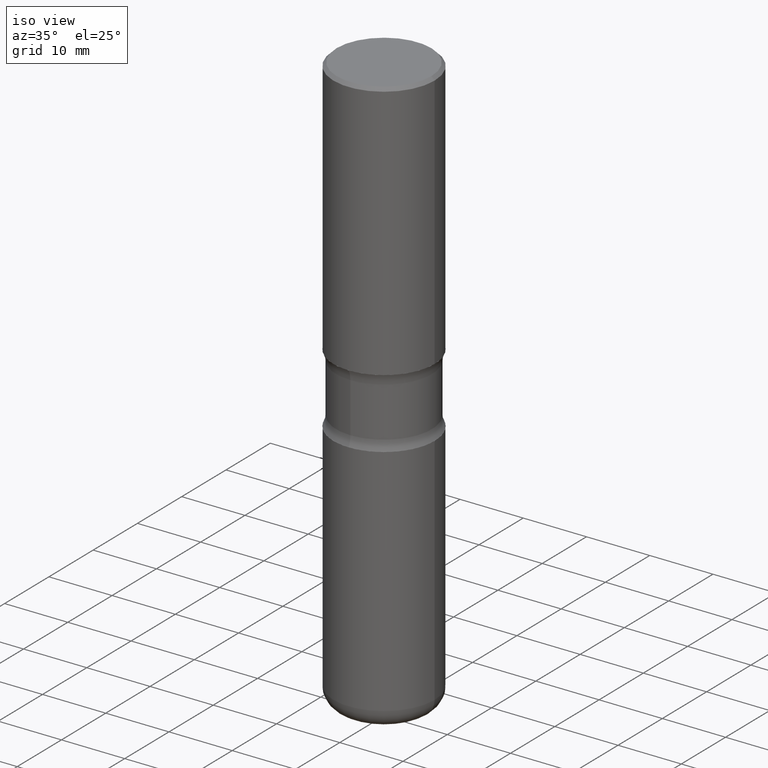
[diagram: clean part render]
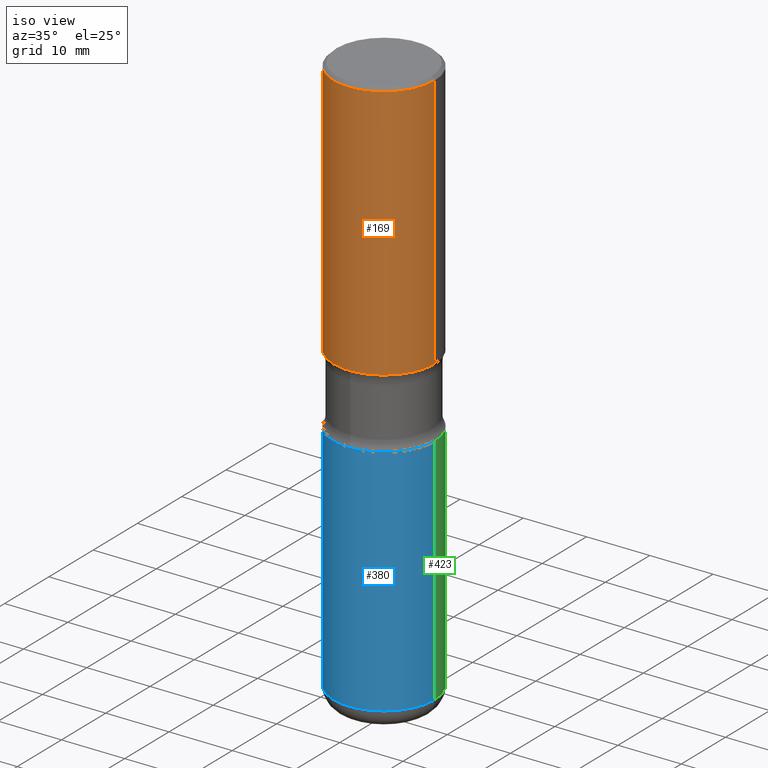
[diagram: same view with three faces highlighted in distinct colors, each labeled with its STEP entity id]
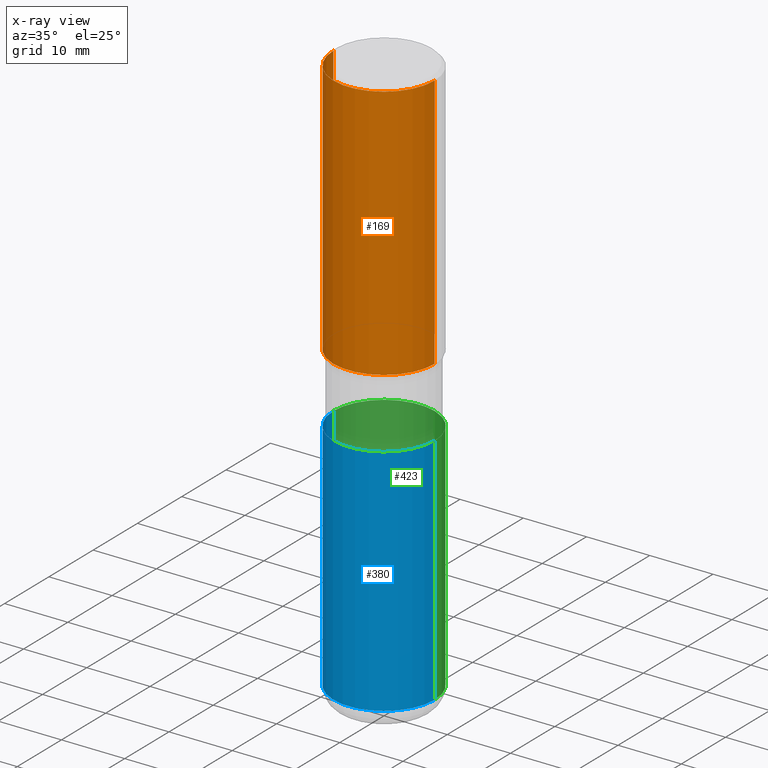
[diagram: x-ray of the same camera — body ghosted, the three highlighted faces saturated]
A machine part, iso view with three faces highlighted in distinct colors.
The next image is the same camera in x-ray (body ghosted, the three faces saturated) — at least one of them is partly hidden behind the body in this view.
Their STEP definitions:

[orange] entity #169 — the highlighted cylindrical surface (partial cylindrical patch) has radius 7.9997 mm, axis along (-0, 0, 1).
#22 = VERTEX_POINT ( 'NONE', #83 ) ;
#39 = DIRECTION ( 'NONE',  ( -2.445468806185136877E-29, 3.491481338843145188E-15, 1.000000000000000000 ) ) ;
#45 = CARTESIAN_POINT ( 'NONE',  ( 0.3149500000000002853, -2.199284095337291843E-15, 1.535751875536931531E-29 ) ) ;
#59 = CARTESIAN_POINT ( 'NONE',  ( -0.3149500000000001743, 2.129454468560427756E-15, -0.02000000000000006981 ) ) ;
#61 = ORIENTED_EDGE ( 'NONE', *, *, #146, .F. ) ;
#70 = DIRECTION ( 'NONE',  ( 1.000000000000000000, -6.982962677686265922E-15, 0.000000000000000000 ) ) ;
#83 = CARTESIAN_POINT ( 'NONE',  ( -0.3149500000000003408, -6.148604816253523528E-16, -1.614099999999999424 ) ) ;
#86 = CYLINDRICAL_SURFACE ( 'NONE', #484, 0.3149500000000002853 ) ;
#100 = ORIENTED_EDGE ( 'NONE', *, *, #383, .T. ) ;
#108 = EDGE_LOOP ( 'NONE', ( #61, #100, #461, #472 ) ) ;
#113 = CARTESIAN_POINT ( 'NONE',  ( 4.890937612370289799E-31, -6.982962677686315028E-17, -0.02000000000000006981 ) ) ;
#117 = CARTESIAN_POINT ( 'NONE',  ( 0.3149500000000001743, -2.230543471175008239E-15, -0.02000000000000006981 ) ) ;
#144 = CARTESIAN_POINT ( 'NONE',  ( 0.000000000000000000, 0.000000000000000000, 0.000000000000000000 ) ) ;
#146 = EDGE_CURVE ( 'NONE', #22, #268, #327, .T. ) ;
#154 = DIRECTION ( 'NONE',  ( -2.445468806185136597E-29, 3.491481338843145583E-15, 1.000000000000000000 ) ) ;
#156 = VERTEX_POINT ( 'NONE', #289 ) ;
#159 = DIRECTION ( 'NONE',  ( -2.445468806185136597E-29, 3.491481338843145583E-15, 1.000000000000000000 ) ) ;
#169 = ADVANCED_FACE ( 'NONE', ( #457 ), #86, .T. ) ;
#194 = VECTOR ( 'NONE', #39, 39.37007874015748143 ) ;
#216 = AXIS2_PLACEMENT_3D ( 'NONE', #113, #154, #498 ) ;
#247 = VERTEX_POINT ( 'NONE', #117 ) ;
#268 = VERTEX_POINT ( 'NONE', #59 ) ;
#281 = CIRCLE ( 'NONE', #216, 0.3149500000000001743 ) ;
#289 = CARTESIAN_POINT ( 'NONE',  ( 0.3149500000000003408, -7.834884124364010939E-15, -1.614099999999999424 ) ) ;
#327 = LINE ( 'NONE', #415, #194 ) ;
#359 = DIRECTION ( 'NONE',  ( 1.000000000000000000, -6.982962677686267499E-15, 4.876176775795936353E-29 ) ) ;
#383 = EDGE_CURVE ( 'NONE', #22, #156, #520, .T. ) ;
#415 = CARTESIAN_POINT ( 'NONE',  ( -0.3149500000000002853, 2.237854346276437562E-15, -1.549218606675783797E-29 ) ) ;
#425 = EDGE_CURVE ( 'NONE', #268, #247, #281, .T. ) ;
#440 = CARTESIAN_POINT ( 'NONE',  ( 3.947231200063427485E-29, -5.635600029026719491E-15, -1.614099999999999424 ) ) ;
#457 = FACE_OUTER_BOUND ( 'NONE', #108, .T. ) ;
#461 = ORIENTED_EDGE ( 'NONE', *, *, #493, .T. ) ;
#472 = ORIENTED_EDGE ( 'NONE', *, *, #425, .F. ) ;
#484 = AXIS2_PLACEMENT_3D ( 'NONE', #144, #490, #359 ) ;
#490 = DIRECTION ( 'NONE',  ( -2.445468806185136597E-29, 3.491481338843145583E-15, 1.000000000000000000 ) ) ;
#493 = EDGE_CURVE ( 'NONE', #156, #247, #552, .T. ) ;
#498 = DIRECTION ( 'NONE',  ( 1.000000000000000000, -6.982962677686265922E-15, 0.000000000000000000 ) ) ;
#518 = VECTOR ( 'NONE', #555, 39.37007874015748143 ) ;
#520 = CIRCLE ( 'NONE', #553, 0.3149500000000003408 ) ;
#552 = LINE ( 'NONE', #45, #518 ) ;
#553 = AXIS2_PLACEMENT_3D ( 'NONE', #440, #159, #70 ) ;
#555 = DIRECTION ( 'NONE',  ( -2.445468806185136877E-29, 3.491481338843145188E-15, 1.000000000000000000 ) ) ;

[blue] entity #380 — the highlighted cylindrical surface (partial cylindrical patch) has radius 7.9997 mm, axis along (-0, 0, 1).
#23 = DIRECTION ( 'NONE',  ( -2.445468806185136597E-29, 3.491481338843145583E-15, 1.000000000000000000 ) ) ;
#34 = ORIENTED_EDGE ( 'NONE', *, *, #155, .F. ) ;
#40 = ORIENTED_EDGE ( 'NONE', *, *, #399, .F. ) ;
#42 = AXIS2_PLACEMENT_3D ( 'NONE', #236, #23, #187 ) ;
#64 = ORIENTED_EDGE ( 'NONE', *, *, #249, .T. ) ;
#80 = LINE ( 'NONE', #162, #84 ) ;
#84 = VECTOR ( 'NONE', #533, 39.37007874015748143 ) ;
#85 = CARTESIAN_POINT ( 'NONE',  ( -0.3149500000000002298, -7.453101257816594857E-15, -2.047199999999999243 ) ) ;
#103 = VERTEX_POINT ( 'NONE', #452 ) ;
#111 = EDGE_LOOP ( 'NONE', ( #40, #556, #64, #34 ) ) ;
#152 = CIRCLE ( 'NONE', #206, 0.3149500000000002298 ) ;
#155 = EDGE_CURVE ( 'NONE', #483, #508, #152, .T. ) ;
#162 = CARTESIAN_POINT ( 'NONE',  ( -0.3149500000000002853, 2.237854346276437562E-15, -1.549218606675783797E-29 ) ) ;
#175 = CARTESIAN_POINT ( 'NONE',  ( 0.3149500000000002298, -9.347044692216974917E-15, -2.047199999999999243 ) ) ;
#181 = VECTOR ( 'NONE', #199, 39.37007874015748143 ) ;
#187 = DIRECTION ( 'NONE',  ( 1.000000000000000000, -6.982962677686268288E-15, 0.000000000000000000 ) ) ;
#199 = DIRECTION ( 'NONE',  ( -2.445468806185136877E-29, 3.491481338843145188E-15, 1.000000000000000000 ) ) ;
#206 = AXIS2_PLACEMENT_3D ( 'NONE', #207, #379, #500 ) ;
#207 = CARTESIAN_POINT ( 'NONE',  ( 5.006363740022209438E-29, -7.147760596879685046E-15, -2.047199999999999243 ) ) ;
#213 = CIRCLE ( 'NONE', #42, 0.3149500000000003408 ) ;
#221 = FACE_OUTER_BOUND ( 'NONE', #111, .T. ) ;
#236 = CARTESIAN_POINT ( 'NONE',  ( 8.568922696872717137E-29, -1.223415061130638137E-14, -3.503999999999999559 ) ) ;
#239 = EDGE_CURVE ( 'NONE', #103, #265, #213, .T. ) ;
#249 = EDGE_CURVE ( 'NONE', #265, #508, #486, .T. ) ;
#265 = VERTEX_POINT ( 'NONE', #283 ) ;
#273 = DIRECTION ( 'NONE',  ( -2.445468806185136597E-29, 3.491481338843145583E-15, 1.000000000000000000 ) ) ;
#282 = AXIS2_PLACEMENT_3D ( 'NONE', #373, #273, #360 ) ;
#283 = CARTESIAN_POINT ( 'NONE',  ( 0.3149500000000003963, -1.443343470664367440E-14, -3.503999999999999559 ) ) ;
#356 = CARTESIAN_POINT ( 'NONE',  ( 0.3149500000000002853, -2.199284095337291843E-15, 1.535751875536931531E-29 ) ) ;
#360 = DIRECTION ( 'NONE',  ( 1.000000000000000000, -6.982962677686267499E-15, 4.876176775795936353E-29 ) ) ;
#373 = CARTESIAN_POINT ( 'NONE',  ( 0.000000000000000000, 0.000000000000000000, 0.000000000000000000 ) ) ;
#379 = DIRECTION ( 'NONE',  ( -2.445468806185136597E-29, 3.491481338843145583E-15, 1.000000000000000000 ) ) ;
#380 = ADVANCED_FACE ( 'NONE', ( #221 ), #482, .T. ) ;
#399 = EDGE_CURVE ( 'NONE', #103, #483, #80, .T. ) ;
#452 = CARTESIAN_POINT ( 'NONE',  ( -0.3149500000000003963, -9.996296265029942230E-15, -3.503999999999999559 ) ) ;
#482 = CYLINDRICAL_SURFACE ( 'NONE', #282, 0.3149500000000002853 ) ;
#483 = VERTEX_POINT ( 'NONE', #85 ) ;
#486 = LINE ( 'NONE', #356, #181 ) ;
#500 = DIRECTION ( 'NONE',  ( 1.000000000000000000, -6.982962677686264344E-15, 0.000000000000000000 ) ) ;
#508 = VERTEX_POINT ( 'NONE', #175 ) ;
#533 = DIRECTION ( 'NONE',  ( -2.445468806185136877E-29, 3.491481338843145188E-15, 1.000000000000000000 ) ) ;
#556 = ORIENTED_EDGE ( 'NONE', *, *, #239, .T. ) ;

[green] entity #423 — the highlighted cylindrical surface (partial cylindrical patch) has radius 7.9997 mm, axis along (-0, 0, 1).
#6 = ORIENTED_EDGE ( 'NONE', *, *, #249, .F. ) ;
#49 = AXIS2_PLACEMENT_3D ( 'NONE', #147, #481, #106 ) ;
#50 = EDGE_LOOP ( 'NONE', ( #403, #521, #358, #6 ) ) ;
#51 = DIRECTION ( 'NONE',  ( -2.445468806185136597E-29, 3.491481338843145583E-15, 1.000000000000000000 ) ) ;
#80 = LINE ( 'NONE', #162, #84 ) ;
#84 = VECTOR ( 'NONE', #533, 39.37007874015748143 ) ;
#85 = CARTESIAN_POINT ( 'NONE',  ( -0.3149500000000002298, -7.453101257816594857E-15, -2.047199999999999243 ) ) ;
#103 = VERTEX_POINT ( 'NONE', #452 ) ;
#106 = DIRECTION ( 'NONE',  ( 1.000000000000000000, -6.982962677686268288E-15, 0.000000000000000000 ) ) ;
#127 = CIRCLE ( 'NONE', #49, 0.3149500000000003408 ) ;
#147 = CARTESIAN_POINT ( 'NONE',  ( 8.568922696872717137E-29, -1.223415061130638137E-14, -3.503999999999999559 ) ) ;
#162 = CARTESIAN_POINT ( 'NONE',  ( -0.3149500000000002853, 2.237854346276437562E-15, -1.549218606675783797E-29 ) ) ;
#175 = CARTESIAN_POINT ( 'NONE',  ( 0.3149500000000002298, -9.347044692216974917E-15, -2.047199999999999243 ) ) ;
#181 = VECTOR ( 'NONE', #199, 39.37007874015748143 ) ;
#199 = DIRECTION ( 'NONE',  ( -2.445468806185136877E-29, 3.491481338843145188E-15, 1.000000000000000000 ) ) ;
#240 = FACE_OUTER_BOUND ( 'NONE', #50, .T. ) ;
#249 = EDGE_CURVE ( 'NONE', #265, #508, #486, .T. ) ;
#265 = VERTEX_POINT ( 'NONE', #283 ) ;
#283 = CARTESIAN_POINT ( 'NONE',  ( 0.3149500000000003963, -1.443343470664367440E-14, -3.503999999999999559 ) ) ;
#286 = EDGE_CURVE ( 'NONE', #265, #103, #127, .T. ) ;
#290 = CARTESIAN_POINT ( 'NONE',  ( 5.006363740022209438E-29, -7.147760596879685046E-15, -2.047199999999999243 ) ) ;
#298 = CIRCLE ( 'NONE', #305, 0.3149500000000002298 ) ;
#305 = AXIS2_PLACEMENT_3D ( 'NONE', #290, #51, #458 ) ;
#330 = DIRECTION ( 'NONE',  ( 1.000000000000000000, -6.982962677686267499E-15, 4.876176775795936353E-29 ) ) ;
#336 = AXIS2_PLACEMENT_3D ( 'NONE', #487, #543, #330 ) ;
#341 = EDGE_CURVE ( 'NONE', #508, #483, #298, .T. ) ;
#356 = CARTESIAN_POINT ( 'NONE',  ( 0.3149500000000002853, -2.199284095337291843E-15, 1.535751875536931531E-29 ) ) ;
#358 = ORIENTED_EDGE ( 'NONE', *, *, #341, .F. ) ;
#399 = EDGE_CURVE ( 'NONE', #103, #483, #80, .T. ) ;
#403 = ORIENTED_EDGE ( 'NONE', *, *, #286, .T. ) ;
#423 = ADVANCED_FACE ( 'NONE', ( #240 ), #539, .T. ) ;
#452 = CARTESIAN_POINT ( 'NONE',  ( -0.3149500000000003963, -9.996296265029942230E-15, -3.503999999999999559 ) ) ;
#458 = DIRECTION ( 'NONE',  ( 1.000000000000000000, -6.982962677686264344E-15, 0.000000000000000000 ) ) ;
#481 = DIRECTION ( 'NONE',  ( -2.445468806185136597E-29, 3.491481338843145583E-15, 1.000000000000000000 ) ) ;
#483 = VERTEX_POINT ( 'NONE', #85 ) ;
#486 = LINE ( 'NONE', #356, #181 ) ;
#487 = CARTESIAN_POINT ( 'NONE',  ( 0.000000000000000000, 0.000000000000000000, 0.000000000000000000 ) ) ;
#508 = VERTEX_POINT ( 'NONE', #175 ) ;
#521 = ORIENTED_EDGE ( 'NONE', *, *, #399, .T. ) ;
#533 = DIRECTION ( 'NONE',  ( -2.445468806185136877E-29, 3.491481338843145188E-15, 1.000000000000000000 ) ) ;
#539 = CYLINDRICAL_SURFACE ( 'NONE', #336, 0.3149500000000002853 ) ;
#543 = DIRECTION ( 'NONE',  ( -2.445468806185136597E-29, 3.491481338843145583E-15, 1.000000000000000000 ) ) ;